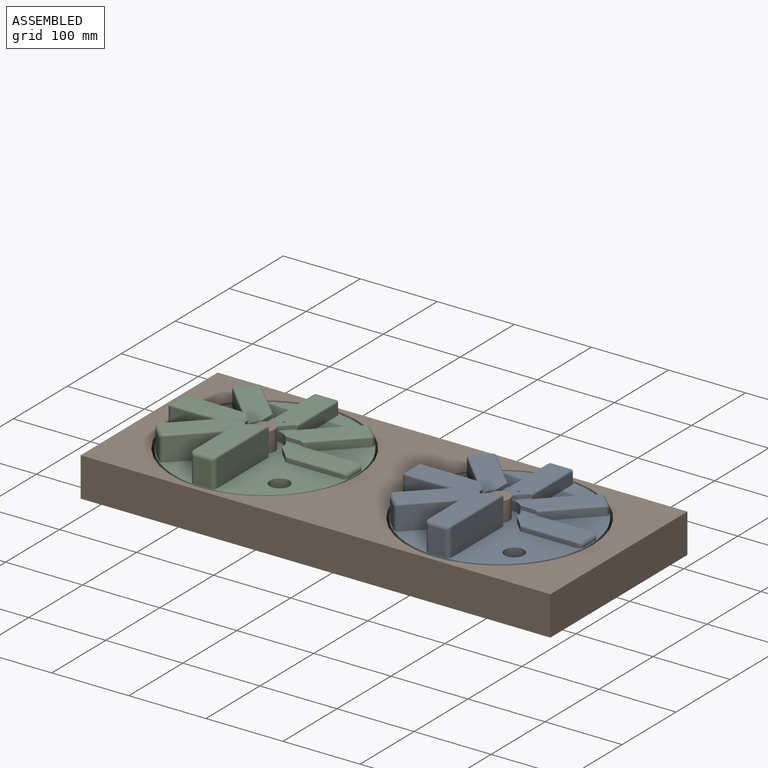
[diagram: assembled view]
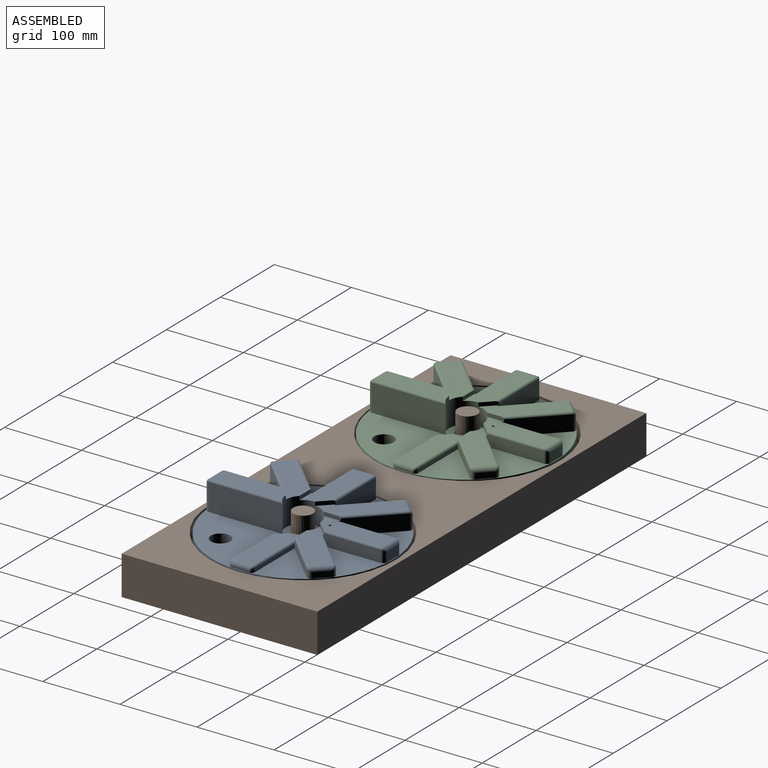
[diagram: assembled view, second angle]
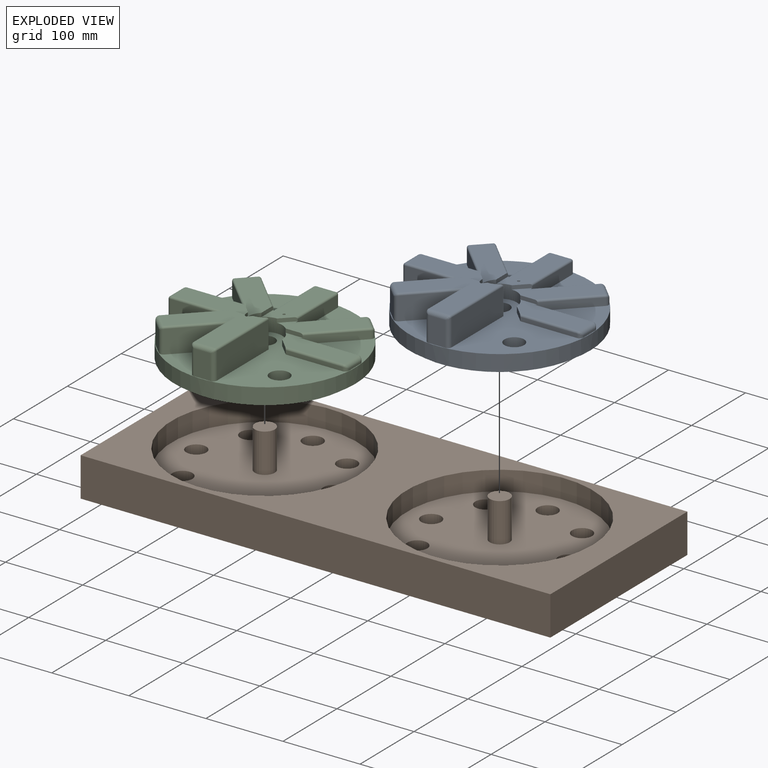
[diagram: exploded view]
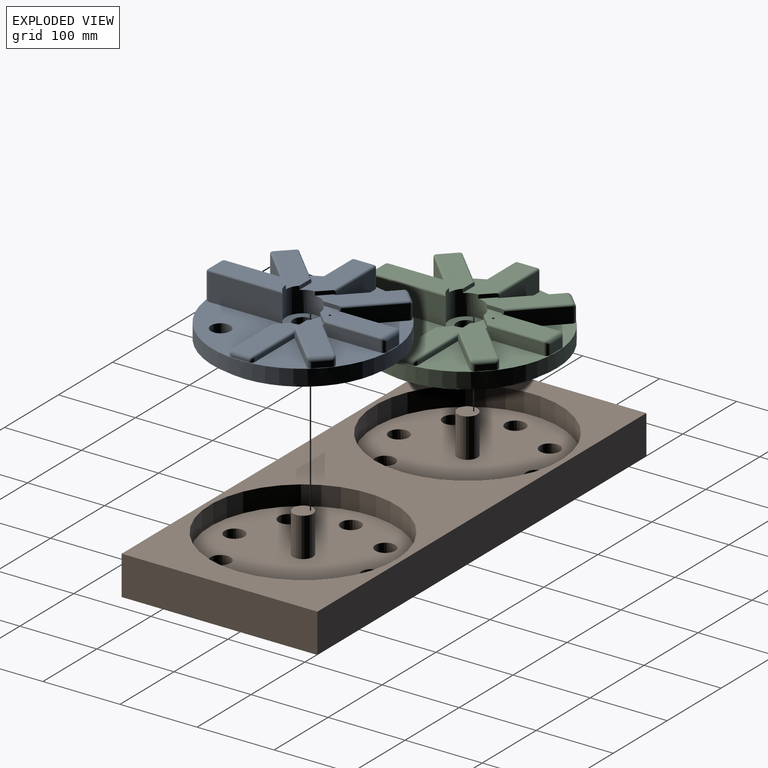
[diagram: exploded view, second angle]
ASSEMBLY  parts=3 mates=2
PART A: 93 faces, bbox 235x235x62.9 mm
  f0: plane 234.95x234.95mm, normal (0,0,1), area 22336.8mm2, adj f2,f4,f5,f6,f7,f8,f9,f12
  f1: cylinder r=1.67mm len=42.9mm, axis (0,0,-1), area 450.2mm2, adj f20,f92
  f2: cylinder r=117.47mm len=234.95mm, axis (0,0,-1), area 14061.1mm2, adj f0,f3
  f3: plane 234.95x234.95mm, normal (0,0,-1), area 6745.5mm2, adj f2,f91
  f4: cylinder r=12.7mm len=25.4mm, axis (0,0,1), area 2026.8mm2, adj f0,f92
  f5: plane 15.72x15.72mm, normal (-0.71,-0.71,0), area 164.7mm2, adj f0,f6,f9,f10,f54
  f6: plane 73.4x4.96mm, normal (0,-1,0), area 364.1mm2, adj f0,f5,f54,f55
  f7: plane 21.27x2.42mm, normal (1,0,0), area 51.5mm2, adj f0,f55,f57,f59
  f8: plane 73.4x4.96mm, normal (0,1,0), area 364.1mm2, adj f0,f13,f52,f59
  f9: cylinder r=22.23mm len=44.45mm, axis (0,0,-1), area 2747.3mm2, adj f0,f5,f10,f11,f15,f16,f20,f21
  f10: plane 95.62x28.89mm, normal (0,0,1), area 2329.9mm2, adj f5,f9,f11,f13,f52,f54,f57
  f11: plane 22.23x5mm, normal (0,-1,0), area 109.2mm2, adj f9,f10,f13,f15,f53
  f12: plane 51.9x51.9mm, normal (-0.71,0.71,0), area 731.1mm2, adj f0,f18,f50,f64
  f13: plane 54.44x54.44mm, normal (0.71,-0.71,0), area 733mm2, adj f0,f8,f10,f11,f52,f53,f60
  f14: plane 15.04x15.04mm, normal (0.71,0.71,0), area 157.8mm2, adj f0,f60,f62,f64
  f15: plane 88.05x72.33mm, normal (0,0,1), area 2329.9mm2, adj f9,f11,f16,f18,f50,f53,f62
  f16: plane 15.72x15.72mm, normal (0.71,-0.71,0), area 109.2mm2, adj f9,f15,f18,f20,f51
  f17: plane 73.4x14.96mm, normal (-1,0,0), area 1098mm2, adj f0,f23,f48,f69
  f18: plane 76.99x14.96mm, normal (1,0,0), area 1100mm2, adj f0,f12,f15,f16,f50,f51,f65
  f19: plane 21.27x12.42mm, normal (0,1,0), area 264.2mm2, adj f0,f65,f67,f69
  f20: plane 95.62x28.89mm, normal (0,0,1), area 2321.2mm2, adj f1,f9,f16,f21,f23,f48,f51,f67
  f21: plane 22.23x5mm, normal (1,0,0), area 109.2mm2, adj f9,f20,f23,f25,f49
  f22: plane 51.9x51.9mm, normal (-0.71,-0.71,0), area 1465mm2, adj f0,f28,f46,f74
  f23: plane 54.44x54.44mm, normal (0.71,0.71,0), area 1467mm2, adj f0,f17,f20,f21,f48,f49,f70
  f24: plane 17.42x15.04mm, normal (-0.71,0.71,0), area 370.5mm2, adj f0,f70,f72,f74
  f25: plane 88.05x72.33mm, normal (0,0,1), area 2329.9mm2, adj f9,f21,f26,f28,f46,f49,f72
  f26: plane 15.72x15.72mm, normal (0.71,0.71,0), area 109.2mm2, adj f9,f25,f28,f30,f47
  f27: plane 73.4x24.96mm, normal (0,-1,0), area 1832mm2, adj f0,f33,f44,f79
  f28: plane 76.99x24.96mm, normal (0,1,0), area 1834mm2, adj f0,f22,f25,f26,f46,f47,f75
  f29: plane 22.42x21.27mm, normal (-1,0,0), area 476.9mm2, adj f0,f75,f77,f79
  f30: plane 95.62x28.89mm, normal (0,0,1), area 2329.9mm2, adj f9,f26,f31,f33,f44,f47,f77
  f31: plane 22.23x5mm, normal (0,1,0), area 109.2mm2, adj f9,f30,f33,f35,f45
  f32: plane 51.9x51.9mm, normal (0.71,-0.71,0), area 2199mm2, adj f0,f38,f41,f89
  f33: plane 54.44x54.44mm, normal (-0.71,0.71,0), area 2201mm2, adj f0,f27,f30,f31,f44,f45,f85
  f34: plane 27.42x15.04mm, normal (-0.71,-0.71,0), area 583.2mm2, adj f0,f85,f87,f89
  f35: plane 88.05x72.33mm, normal (0,0,1), area 2329.9mm2, adj f9,f31,f36,f38,f41,f45,f87
  f36: plane 15.72x15.72mm, normal (-0.71,0.71,0), area 109.2mm2, adj f9,f35,f38,f40,f42
  f37: plane 95.62x34.96mm, normal (1,0,0), area 3343mm2, adj f0,f9,f43,f80
  f38: plane 76.99x34.96mm, normal (-1,0,0), area 2568mm2, adj f0,f32,f35,f36,f41,f42,f84
  f39: plane 32.42x21.27mm, normal (0,-1,0), area 689.6mm2, adj f0,f80,f82,f84
  f40: plane 93.44x26.35mm, normal (0,0,1), area 2279.6mm2, adj f9,f36,f42,f43,f82
  f41: cylinder r=2.54mm len=55.49mm, axis (-0.71,-0.71,0), area 296.5mm2, adj f32,f35,f38,f88
  f42: cylinder r=2.54mm len=75.94mm, axis (0,1,0), area 296.5mm2, adj f36,f38,f40,f83
  f43: cylinder r=2.54mm len=95.62mm, axis (0,-1,0), area 378.2mm2, adj f9,f37,f40,f81
  f44: cylinder r=2.54mm len=75.94mm, axis (-1,0,0), area 296.5mm2, adj f27,f30,f33,f78
  f45: cylinder r=2.54mm len=55.49mm, axis (0.71,0.71,0), area 296.5mm2, adj f31,f33,f35,f86
  f46: cylinder r=2.54mm len=55.49mm, axis (-0.71,0.71,0), area 296.5mm2, adj f22,f25,f28,f73
  f47: cylinder r=2.54mm len=75.94mm, axis (1,0,0), area 296.5mm2, adj f26,f28,f30,f76
  f48: cylinder r=2.54mm len=75.94mm, axis (0,1,0), area 296.5mm2, adj f17,f20,f23,f68
  f49: cylinder r=2.54mm len=55.49mm, axis (0.71,-0.71,0), area 296.5mm2, adj f21,f23,f25,f71
  f50: cylinder r=2.54mm len=55.49mm, axis (0.71,0.71,0), area 296.5mm2, adj f12,f15,f18,f63
  f51: cylinder r=2.54mm len=75.94mm, axis (0,-1,0), area 296.5mm2, adj f16,f18,f20,f66
  f52: cylinder r=2.54mm len=75.94mm, axis (1,0,0), area 296.5mm2, adj f8,f10,f13,f58
  f53: cylinder r=2.54mm len=55.49mm, axis (-0.71,-0.71,0), area 296.5mm2, adj f11,f13,f15,f61
  f54: cylinder r=2.54mm len=75.94mm, axis (-1,0,0), area 296.5mm2, adj f5,f6,f10,f56
  f55: cylinder r=5.08mm len=5.08mm, axis (0,0,-1), area 32.2mm2, adj f0,f6,f7,f56
  f56: bspline ~5.33x5.08mm, area 21.1mm2, adj f54,f55,f57
  f57: cylinder r=5.08mm len=26.35mm, axis (0,-1,0), area 195.5mm2, adj f7,f10,f56,f58
  f58: bspline ~5.33x5.08mm, area 21.1mm2, adj f52,f57,f59
  f59: cylinder r=5.08mm len=5.08mm, axis (0,0,-1), area 32.2mm2, adj f0,f7,f8,f58
  f60: cylinder r=5.08mm len=9.96mm, axis (0,0,1), area 72.1mm2, adj f0,f13,f14,f61
  f61: bspline ~7.83x5.08mm, area 21.3mm2, adj f53,f60,f62
  f62: cylinder r=5.08mm len=22.23mm, axis (0.71,-0.71,0), area 195.5mm2, adj f14,f15,f61,f63
  f63: bspline ~7.83x5.08mm, area 21.1mm2, adj f50,f62,f64
  f64: cylinder r=5.08mm len=9.96mm, axis (0,0,-1), area 72.1mm2, adj f0,f12,f14,f63
  f65: cylinder r=5.08mm len=14.96mm, axis (0,0,-1), area 112mm2, adj f0,f18,f19,f66
  f66: bspline ~5.33x5.08mm, area 21mm2, adj f51,f65,f67
  f67: cylinder r=5.08mm len=26.35mm, axis (1,0,0), area 195.5mm2, adj f19,f20,f66,f68
  f68: bspline ~5.33x5.08mm, area 21.1mm2, adj f48,f67,f69
  f69: cylinder r=5.08mm len=14.96mm, axis (0,0,-1), area 112mm2, adj f0,f17,f19,f68
  f70: cylinder r=5.08mm len=19.96mm, axis (0,0,1), area 151.9mm2, adj f0,f23,f24,f71
  f71: bspline ~7.83x5.08mm, area 21.3mm2, adj f49,f70,f72
  f72: cylinder r=5.08mm len=22.23mm, axis (0.71,0.71,0), area 195.5mm2, adj f24,f25,f71,f73
  f73: bspline ~7.36x5.08mm, area 21.1mm2, adj f46,f72,f74
  f74: cylinder r=5.08mm len=19.96mm, axis (0,0,-1), area 151.9mm2, adj f0,f22,f24,f73
  f75: cylinder r=5.08mm len=24.96mm, axis (0,0,-1), area 191.8mm2, adj f0,f28,f29,f76
  f76: bspline ~5.33x5.08mm, area 21mm2, adj f47,f75,f77
  f77: cylinder r=5.08mm len=26.35mm, axis (0,1,0), area 195.5mm2, adj f29,f30,f76,f78
  f78: bspline ~5.33x5.08mm, area 21mm2, adj f44,f77,f79
  f79: cylinder r=5.08mm len=24.96mm, axis (0,0,-1), area 191.8mm2, adj f0,f27,f29,f78
  f80: cylinder r=5.08mm len=34.96mm, axis (0,0,1), area 271.6mm2, adj f0,f37,f39,f81
  f81: bspline ~5.33x5.08mm, area 21.1mm2, adj f43,f80,f82
  f82: cylinder r=5.08mm len=26.35mm, axis (-1,0,0), area 195.5mm2, adj f39,f40,f81,f83
  f83: bspline ~6.07x5.08mm, area 21.3mm2, adj f42,f82,f84
  f84: cylinder r=5.08mm len=34.96mm, axis (0,0,1), area 271.6mm2, adj f0,f38,f39,f83
  f85: cylinder r=5.08mm len=29.96mm, axis (0,0,-1), area 231.7mm2, adj f0,f33,f34,f86
  f86: bspline ~7.36x5.08mm, area 21.1mm2, adj f45,f85,f87
  f87: cylinder r=5.08mm len=22.23mm, axis (-0.71,0.71,0), area 195.5mm2, adj f34,f35,f86,f88
  f88: bspline ~7.36x5.08mm, area 21.1mm2, adj f41,f87,f89
  f89: cylinder r=5.08mm len=29.96mm, axis (0,0,-1), area 231.7mm2, adj f0,f32,f34,f88
  f90: cylinder r=12.7mm len=25.4mm, axis (0,0,1), area 2026.8mm2, adj f0,f92
  f91: cylinder r=107.95mm len=215.9mm, axis (0,0,1), area 4307mm2, adj f3,f92
  f92: plane 215.9x215.9mm, normal (0,0,-1), area 35587.4mm2, adj f1,f4,f90,f91
PART B: 46 faces, bbox 609.6x254x76.2 mm
  f0: plane 609.6x50.8mm, normal (0,1,0), area 30967.7mm2, adj f1,f3,f4,f5
  f1: plane 254x50.8mm, normal (-1,0,0), area 12903.2mm2, adj f0,f2,f4,f5
  f2: plane 609.6x50.8mm, normal (0,-1,0), area 30967.7mm2, adj f1,f3,f4,f5
  f3: plane 254x50.8mm, normal (1,0,0), area 12903.2mm2, adj f0,f2,f4,f5
  f4: plane 609.6x254mm, normal (0,0,1), area 63377.7mm2, adj f0,f1,f2,f3,f6,f8
  f5: plane 609.6x254mm, normal (0,0,-1), area 154838.4mm2, adj f0,f1,f2,f3
  f6: cylinder r=120.65mm len=241.3mm, axis (0,0,1), area 19254.9mm2, adj f4,f7
  f7: plane 241.3x241.3mm, normal (0,0,1), area 40985.7mm2, adj f6,f11,f30,f32,f34,f36,f38,f40
  f8: cylinder r=120.65mm len=241.3mm, axis (0,0,1), area 19254.9mm2, adj f4,f9
  f9: plane 241.3x241.3mm, normal (0,0,1), area 40985.7mm2, adj f8,f13,f14,f16,f18,f20,f22,f24
  f10: plane 25.91x25.91mm, normal (0,0,1), area 527.2mm2, adj f11
  f11: cylinder r=12.95mm len=50.8mm, axis (0,0,-1), area 4134.7mm2, adj f7,f10
  f12: plane 25.91x25.91mm, normal (0,0,1), area 527.2mm2, adj f13
  f13: cylinder r=12.95mm len=50.8mm, axis (0,0,-1), area 4134.7mm2, adj f9,f12
  f14: cylinder r=12.95mm len=25.91mm, axis (0,0,1), area 1550.5mm2, adj f9,f15
  f15: plane 25.91x25.91mm, normal (0,0,1), area 527.2mm2, adj f14
  f16: cylinder r=12.95mm len=25.91mm, axis (0,0,1), area 1550.5mm2, adj f9,f17
  f17: plane 25.91x25.91mm, normal (0,0,1), area 527.2mm2, adj f16
  f18: cylinder r=12.95mm len=25.91mm, axis (0,0,1), area 1550.5mm2, adj f9,f19
  f19: plane 25.91x25.91mm, normal (0,0,1), area 527.2mm2, adj f18
  f20: cylinder r=12.95mm len=25.91mm, axis (0,0,1), area 1550.5mm2, adj f9,f21
  f21: plane 25.91x25.91mm, normal (0,0,1), area 527.2mm2, adj f20
  f22: cylinder r=12.95mm len=25.91mm, axis (0,0,1), area 1550.5mm2, adj f9,f23
  f23: plane 25.91x25.91mm, normal (0,0,1), area 527.2mm2, adj f22
  f24: cylinder r=12.95mm len=25.91mm, axis (0,0,1), area 1550.5mm2, adj f9,f25
  f25: plane 25.91x25.91mm, normal (0,0,1), area 527.2mm2, adj f24
  f26: cylinder r=12.95mm len=25.91mm, axis (0,0,1), area 1550.5mm2, adj f9,f27
  f27: plane 25.91x25.91mm, normal (0,0,1), area 527.2mm2, adj f26
  f28: cylinder r=12.95mm len=25.91mm, axis (0,0,1), area 1550.5mm2, adj f9,f29
  f29: plane 25.91x25.91mm, normal (0,0,1), area 527.2mm2, adj f28
  f30: cylinder r=12.95mm len=25.91mm, axis (0,0,1), area 1550.5mm2, adj f7,f31
  f31: plane 25.91x25.91mm, normal (0,0,1), area 527.2mm2, adj f30
  f32: cylinder r=12.95mm len=25.91mm, axis (0,0,1), area 1550.5mm2, adj f7,f33
  f33: plane 25.91x25.91mm, normal (0,0,1), area 527.2mm2, adj f32
  f34: cylinder r=12.95mm len=25.91mm, axis (0,0,1), area 1550.5mm2, adj f7,f35
  f35: plane 25.91x25.91mm, normal (0,0,1), area 527.2mm2, adj f34
  f36: cylinder r=12.95mm len=25.91mm, axis (0,0,1), area 1550.5mm2, adj f7,f37
  f37: plane 25.91x25.91mm, normal (0,0,1), area 527.2mm2, adj f36
  f38: cylinder r=12.95mm len=25.91mm, axis (0,0,1), area 1550.5mm2, adj f7,f39
  f39: plane 25.91x25.91mm, normal (0,0,1), area 527.2mm2, adj f38
  f40: cylinder r=12.95mm len=25.91mm, axis (0,0,1), area 1550.5mm2, adj f7,f41
  f41: plane 25.91x25.91mm, normal (0,0,1), area 527.2mm2, adj f40
  f42: cylinder r=12.95mm len=25.91mm, axis (0,0,1), area 1550.5mm2, adj f7,f43
  f43: plane 25.91x25.91mm, normal (0,0,1), area 527.2mm2, adj f42
  f44: cylinder r=12.95mm len=25.91mm, axis (0,0,1), area 1550.5mm2, adj f7,f45
  f45: plane 25.91x25.91mm, normal (0,0,1), area 527.2mm2, adj f44
PART C: same geometry as A
PLACE A t=(-59.11,86.07,342.52)mm
PLACE B t=(-211.51,84.54,310.77)mm
PLACE C t=(-363.02,85.18,342.52)mm
MATE revolute A.f91 <-> B.f8  axis (0,0,-1) through (-59.11,86.07,336.17)mm
MATE revolute C.f92 <-> B.f6  axis (0,0,-1) through (-363.91,86.07,336.17)mm
